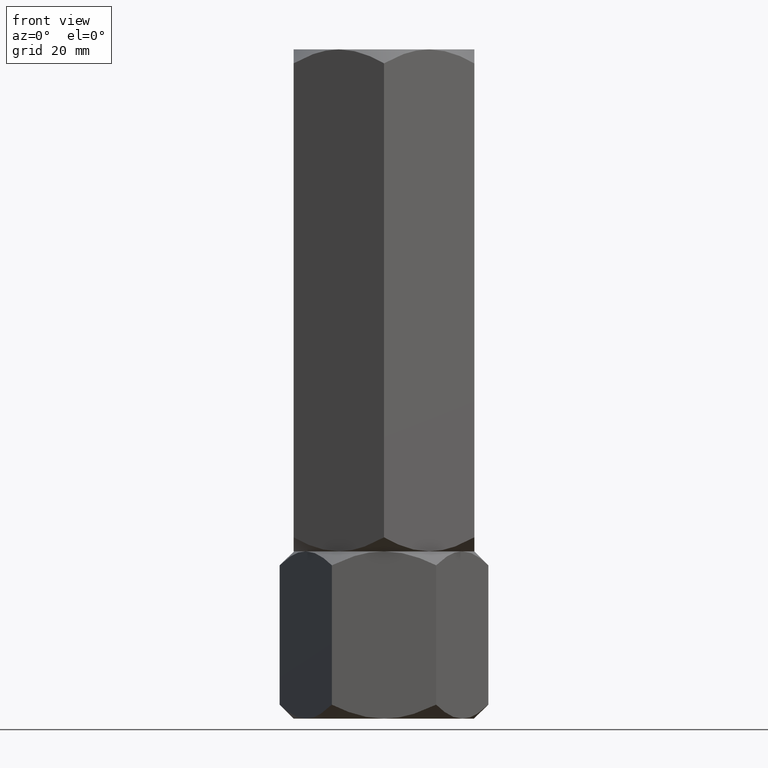
[diagram: clean part render]
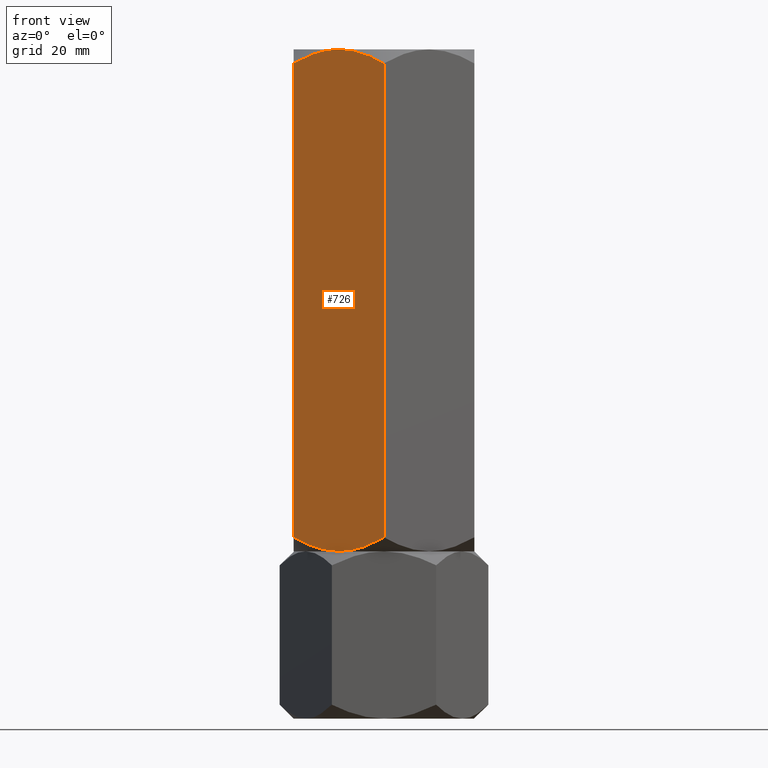
[diagram: same view with one face highlighted and labeled with its STEP entity id]
A machine part, front view. The second image highlights one B-rep face of the part: STEP entity #726.
In plain terms, the highlighted planar face has unit normal (0.5, 0.866, -0).
Its self-contained STEP definition (entity closure, byte-faithful):
#17 = CARTESIAN_POINT ( 'NONE',  ( -3.379014044959083873E-15, -20.78460969082652809, 36.11794302415981406 ) ) ;
#32 = CARTESIAN_POINT ( 'NONE',  ( -5.858009779716805809, -17.40248616759157585, 33.67389643558856704 ) ) ;
#46 = EDGE_LOOP ( 'NONE', ( #347, #1385, #296, #1278, #1155, #265 ) ) ;
#77 = LINE ( 'NONE', #419, #1643 ) ;
#105 = CARTESIAN_POINT ( 'NONE',  ( -9.394125676616237541, -15.36090870263096519, 133.3333333333333428 ) ) ;
#139 = CARTESIAN_POINT ( 'NONE',  ( -18.00000000000000355, -10.39230484541325872, 36.11794302415981406 ) ) ;
#199 = CARTESIAN_POINT ( 'NONE',  ( -8.605874323383776670, -15.81600583360881807, 33.33333333333330728 ) ) ;
#201 = DIRECTION ( 'NONE',  ( -0.8660254037844384856, 0.5000000000000002220, 0.000000000000000000 ) ) ;
#256 = VERTEX_POINT ( 'NONE', #1046 ) ;
#260 = CARTESIAN_POINT ( 'NONE',  ( -9.790461530629876563, -15.13208409062668736, 133.3160004768592160 ) ) ;
#265 = ORIENTED_EDGE ( 'NONE', *, *, #305, .F. ) ;
#279 = CARTESIAN_POINT ( 'NONE',  ( -9.000000000000003553, -15.58845726811989074, 133.3333333333333144 ) ) ;
#296 = ORIENTED_EDGE ( 'NONE', *, *, #627, .F. ) ;
#305 = EDGE_CURVE ( 'NONE', #600, #1255, #1922, .T. ) ;
#320 = CARTESIAN_POINT ( 'NONE',  ( -18.00000000000000355, -10.39230484541325872, 36.11794302415981406 ) ) ;
#332 = VERTEX_POINT ( 'NONE', #17 ) ;
#347 = ORIENTED_EDGE ( 'NONE', *, *, #485, .F. ) ;
#419 = CARTESIAN_POINT ( 'NONE',  ( -2.998680872865238938E-15, -20.78460969082652809, 133.3333333333333144 ) ) ;
#432 = LINE ( 'NONE', #900, #1707 ) ;
#485 = EDGE_CURVE ( 'NONE', #256, #600, #1253, .T. ) ;
#572 = CARTESIAN_POINT ( 'NONE',  ( -10.58425150785354596, -14.67378923359657961, 133.2463864432151297 ) ) ;
#600 = VERTEX_POINT ( 'NONE', #279 ) ;
#627 = EDGE_CURVE ( 'NONE', #974, #1162, #1196, .T. ) ;
#628 = CARTESIAN_POINT ( 'NONE',  ( -9.000000000000005329, -15.58845726811989429, 33.33333333333330017 ) ) ;
#631 = CARTESIAN_POINT ( 'NONE',  ( -2.860715810337969955, -19.13297464765287614, 132.0607586318289748 ) ) ;
#651 = CARTESIAN_POINT ( 'NONE',  ( -6.297340013485389316E-15, -20.78460969082653165, 130.5487236425067863 ) ) ;
#666 = CARTESIAN_POINT ( 'NONE',  ( -7.023280245922047804, -16.72971695024923733, 33.47205593243187138 ) ) ;
#726 = ADVANCED_FACE ( 'NONE', ( #1625 ), #1306, .F. ) ;
#769 = CARTESIAN_POINT ( 'NONE',  ( -6.297340013485389316E-15, -20.78460969082653165, 130.5487236425067863 ) ) ;
#832 = CARTESIAN_POINT ( 'NONE',  ( -9.000000000000005329, -15.58845726811989429, 33.33333333333330017 ) ) ;
#843 = CARTESIAN_POINT ( 'NONE',  ( -18.00000000000000355, -10.39230484541325872, 133.3333333333333144 ) ) ;
#900 = CARTESIAN_POINT ( 'NONE',  ( -18.00000000000000355, -10.39230484541325872, 133.3333333333333144 ) ) ;
#968 = CARTESIAN_POINT ( 'NONE',  ( -2.854601888853814717, -19.13650452186756468, 34.61071641122316578 ) ) ;
#973 = CARTESIAN_POINT ( 'NONE',  ( -9.000000000000003553, -15.58845726811989074, 133.3333333333333144 ) ) ;
#974 = VERTEX_POINT ( 'NONE', #1578 ) ;
#976 = B_SPLINE_CURVE_WITH_KNOTS ( 'NONE', 3,
 ( #1458, #1113, #968, #1743, #32, #666, #1466, #1621, #199, #832 ),
 .UNSPECIFIED., .F., .F.,
 ( 4, 2, 2, 2, 4 ),
 ( 2.544307986818388831E-07, 0.005386537354063075135, 0.008079678815695271604, 0.009426249546511370273, 0.01077282027732747241 ),
 .UNSPECIFIED. ) ;
#984 = CARTESIAN_POINT ( 'NONE',  ( -16.58866960374795951, -11.20713682960487567, 131.3635556266983428 ) ) ;
#991 = AXIS2_PLACEMENT_3D ( 'NONE', #843, #1940, #201 ) ;
#1027 = DIRECTION ( 'NONE',  ( -0.000000000000000000, -0.000000000000000000, -1.000000000000000000 ) ) ;
#1046 = CARTESIAN_POINT ( 'NONE',  ( -18.00000000000000711, -10.39230484541325694, 130.5487236425067863 ) ) ;
#1113 = CARTESIAN_POINT ( 'NONE',  ( -1.411330396252050923, -19.96977770663490759, 35.30311103996819355 ) ) ;
#1145 = EDGE_CURVE ( 'NONE', #332, #974, #976, .T. ) ;
#1155 = ORIENTED_EDGE ( 'NONE', *, *, #1361, .F. ) ;
#1162 = VERTEX_POINT ( 'NONE', #320 ) ;
#1196 = B_SPLINE_CURVE_WITH_KNOTS ( 'NONE', 3,
 ( #628, #1693, #1561, #1259, #1582, #139 ),
 .UNSPECIFIED., .F., .F.,
 ( 4, 2, 4 ),
 ( 0.01077282027732747241, 0.01612137750481873466, 0.02146993473231000038 ),
 .UNSPECIFIED. ) ;
#1230 = DIRECTION ( 'NONE',  ( -0.000000000000000000, -0.000000000000000000, -1.000000000000000000 ) ) ;
#1253 = B_SPLINE_CURVE_WITH_KNOTS ( 'NONE', 3,
 ( #2003, #984, #1529, #1365, #1629, #1463, #572, #260, #105, #1845 ),
 .UNSPECIFIED., .F., .F.,
 ( 4, 2, 2, 2, 4 ),
 ( 2.544307986816325776E-07, 0.005386537354063064727, 0.008079678815695268135, 0.009426249546511372007, 0.01077282027732747414 ),
 .UNSPECIFIED. ) ;
#1255 = VERTEX_POINT ( 'NONE', #769 ) ;
#1259 = CARTESIAN_POINT ( 'NONE',  ( -15.13928418966203893, -12.04393988858690001, 34.60590803483753319 ) ) ;
#1270 = EDGE_CURVE ( 'NONE', #256, #1162, #432, .T. ) ;
#1278 = ORIENTED_EDGE ( 'NONE', *, *, #1145, .F. ) ;
#1306 = PLANE ( 'NONE',  #991 ) ;
#1361 = EDGE_CURVE ( 'NONE', #1255, #332, #77, .T. ) ;
#1365 = CARTESIAN_POINT ( 'NONE',  ( -12.90267270303528058, -13.33524813246346774, 132.7962477775043055 ) ) ;
#1385 = ORIENTED_EDGE ( 'NONE', *, *, #1270, .T. ) ;
#1458 = CARTESIAN_POINT ( 'NONE',  ( -3.379014044959083873E-15, -20.78460969082652809, 36.11794302415981406 ) ) ;
#1463 = CARTESIAN_POINT ( 'NONE',  ( -10.97671975407796019, -14.44719758599053172, 133.1946107342347148 ) ) ;
#1466 = CARTESIAN_POINT ( 'NONE',  ( -7.415748492146458481, -16.50312530264320188, 33.42028022345144933 ) ) ;
#1529 = CARTESIAN_POINT ( 'NONE',  ( -15.14539811114619283, -12.04041001437221858, 132.0559502554434061 ) ) ;
#1561 = CARTESIAN_POINT ( 'NONE',  ( -12.10430252359948256, -13.79618737047369947, 33.60972924045488242 ) ) ;
#1578 = CARTESIAN_POINT ( 'NONE',  ( -9.000000000000005329, -15.58845726811989429, 33.33333333333330017 ) ) ;
#1582 = CARTESIAN_POINT ( 'NONE',  ( -16.59030399953601886, -11.20619321075667862, 35.30405465881634797 ) ) ;
#1589 = CARTESIAN_POINT ( 'NONE',  ( -5.895697476400527215, -17.38072716576608556, 133.0569374262117606 ) ) ;
#1621 = CARTESIAN_POINT ( 'NONE',  ( -8.209538469370132319, -16.04483044561309057, 33.35066618980736308 ) ) ;
#1625 = FACE_OUTER_BOUND ( 'NONE', #46, .T. ) ;
#1629 = CARTESIAN_POINT ( 'NONE',  ( -12.14199022028321373, -13.77442836864821452, 132.9927702310780546 ) ) ;
#1643 = VECTOR ( 'NONE', #1027, 1000.000000000000000 ) ;
#1693 = CARTESIAN_POINT ( 'NONE',  ( -10.56546083169954642, -14.68463803553234293, 33.33333333333329307 ) ) ;
#1707 = VECTOR ( 'NONE', #1230, 1000.000000000000000 ) ;
#1743 = CARTESIAN_POINT ( 'NONE',  ( -5.097327296964722976, -17.84166640377631552, 33.87041888916230192 ) ) ;
#1750 = CARTESIAN_POINT ( 'NONE',  ( -7.434539168300463352, -16.49227650070743678, 133.3333333333332860 ) ) ;
#1845 = CARTESIAN_POINT ( 'NONE',  ( -9.000000000000003553, -15.58845726811989074, 133.3333333333333144 ) ) ;
#1900 = CARTESIAN_POINT ( 'NONE',  ( -1.409696000463992682, -19.97072132548310108, 131.3626120078502595 ) ) ;
#1922 = B_SPLINE_CURVE_WITH_KNOTS ( 'NONE', 3,
 ( #973, #1750, #1589, #631, #1900, #651 ),
 .UNSPECIFIED., .F., .F.,
 ( 4, 2, 4 ),
 ( 0.01077282027732747414, 0.01612137750481874160, 0.02146993473231000732 ),
 .UNSPECIFIED. ) ;
#1940 = DIRECTION ( 'NONE',  ( 0.5000000000000003331, 0.8660254037844385966, -0.000000000000000000 ) ) ;
#2003 = CARTESIAN_POINT ( 'NONE',  ( -18.00000000000000711, -10.39230484541325694, 130.5487236425067863 ) ) ;